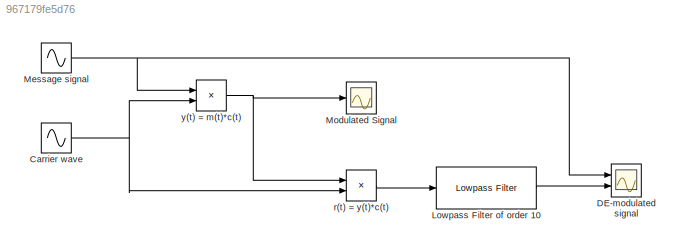
MODEL slx_967179fe5d76
KIND model
CONFIG AbsTol = auto
CONFIG EnableMultiTasking = off
CONFIG FixedStep = auto
CONFIG MaxStep = auto
CONFIG MinStep = auto
CONFIG RelTol = 1e-3
CONFIG SampleTimeConstraint = Unconstrained
CONFIG SolverName = VariableStepAuto
CONFIG StartTime = 0.0
CONFIG StopTime = 10.0
BLOCK [Sin] Carrier wave
  Frequency = 10000
  Ports = [0, 1]
  SampleTime = 0.01
BLOCK [Scope] DE-modulated signal
  Floating = off
  NumInputPorts = 2
  Ports = [2]
  ScopeSpecificationString = Simulink.scopes.TimeScopeBlockCfg('CurrentConfiguration', extmgr.ConfigurationSet(extmgr.Configuration('Core','General UI',true),extmgr.Configuration('Core','Source UI',true),extmgr.Configuration('Sources','WiredSimulink',true,'DataLoggingVariableName','ScopeData1'),extmgr.Configuration('Visuals','Time Domain',true,'SerializedDisplays',{struct('MinYLimReal','-1.24999','MaxYLimReal','1.24999','YLab...<+1431ch>
BLOCK [Reference] Lowpass Filter of order 10  REF=dspfdesign/Lowpass Filter
  Ports = [1, 1]
  SourceBlock = dspfdesign/Lowpass Filter
  SourceProductBaseCode = DS
  SourceType = dsp.LowpassFilter
BLOCK [Sin] Message signal
  Frequency = 10
  Ports = [0, 1]
  SampleTime = 0.01
BLOCK [Scope] Modulated Signal
  Floating = off
  NumInputPorts = 1
  Ports = [1]
  ScopeSpecificationString = Simulink.scopes.TimeScopeBlockCfg('CurrentConfiguration', extmgr.ConfigurationSet(extmgr.Configuration('Core','General UI',true),extmgr.Configuration('Core','Source UI',true),extmgr.Configuration('Sources','WiredSimulink',true),extmgr.Configuration('Visuals','Time Domain',true,'SerializedDisplays',{struct('MinYLimReal','-1.2471','MaxYLimReal','1.24913','YLabelReal','','MinYLimMag','0.00000','MaxYL...<+1363ch>
BLOCK [Product] r(t) = y(t)*c(t)
  Ports = [2, 1]
BLOCK [Product] y(t) = m(t)*c(t)
  Ports = [2, 1]
NET Carrier wave:1 -> r(t) = y(t)*c(t):2, y(t) = m(t)*c(t):2
LINE Lowpass Filter of order 10:1 -> DE-modulated signal:2
NET Message signal:1 -> DE-modulated signal:1, y(t) = m(t)*c(t):1
LINE r(t) = y(t)*c(t):1 -> Lowpass Filter of order 10:1
NET y(t) = m(t)*c(t):1 -> Modulated Signal:1, r(t) = y(t)*c(t):1
note: NET lines group one-source signal fan-out (src -> all destinations, sorted); 1:1 wires keep LINE
